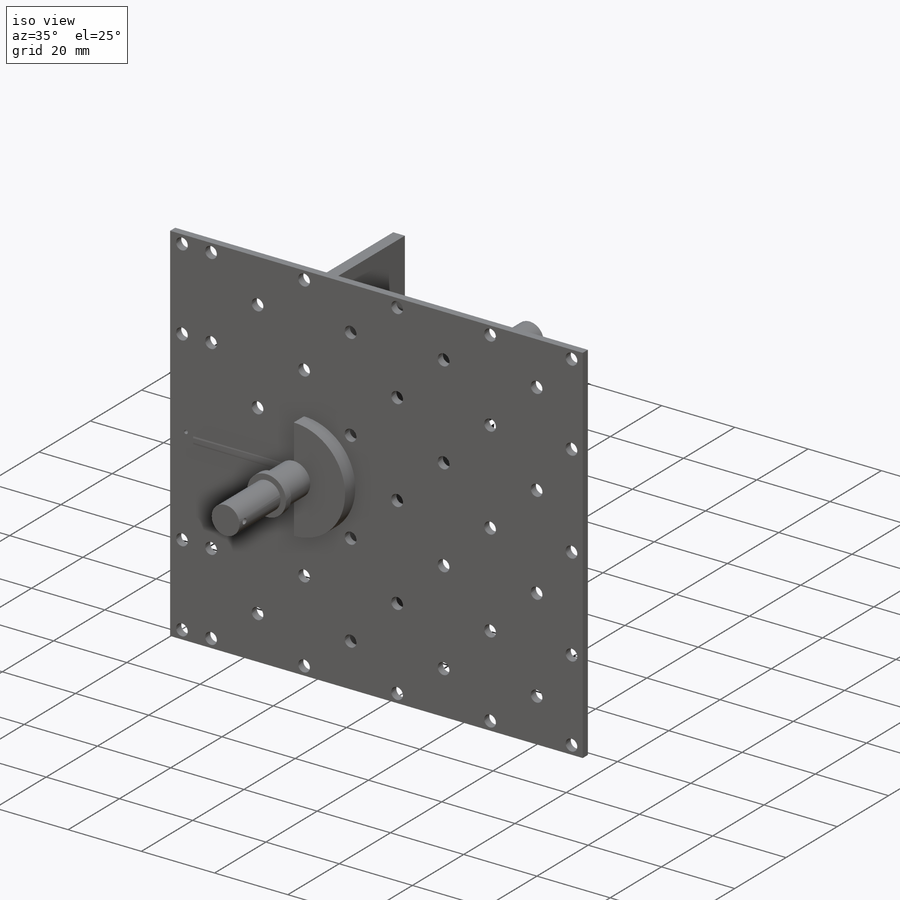
[diagram: iso view]
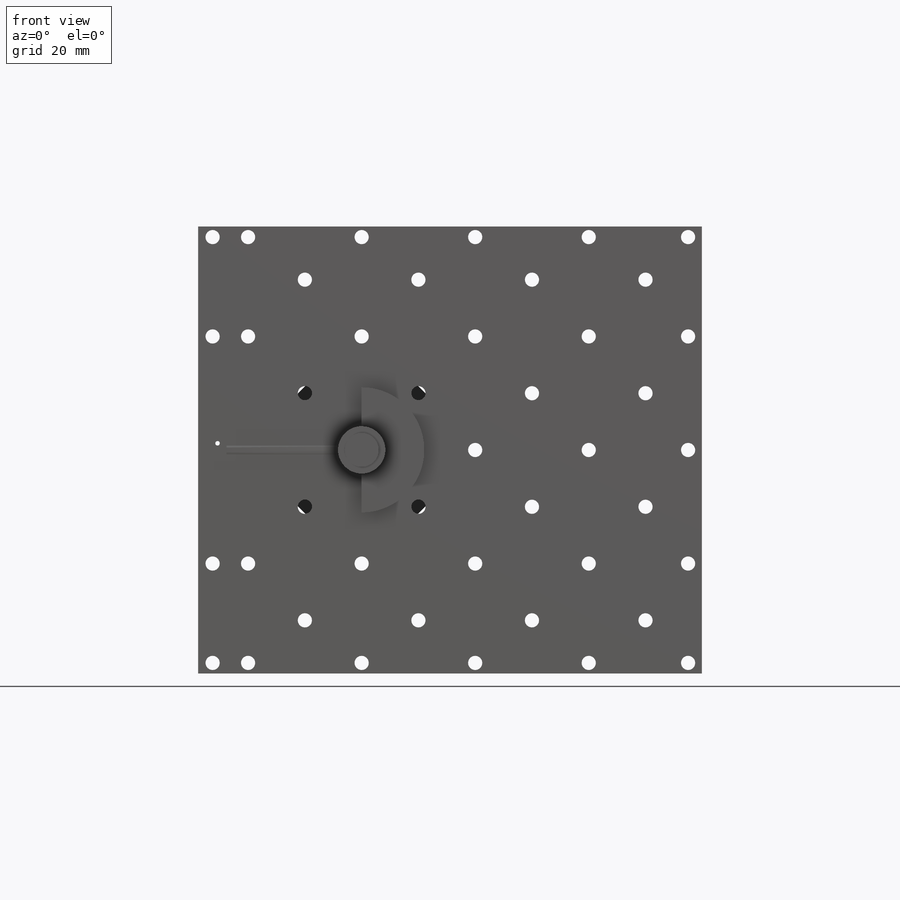
[diagram: front view]
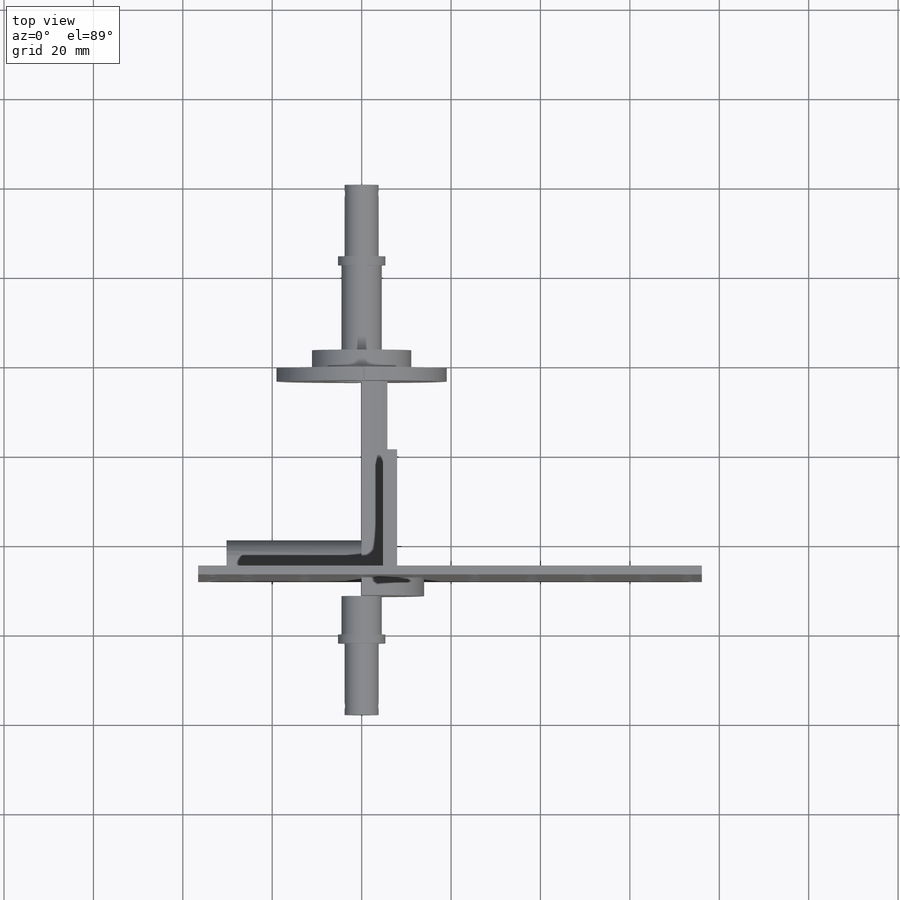
[diagram: top view]
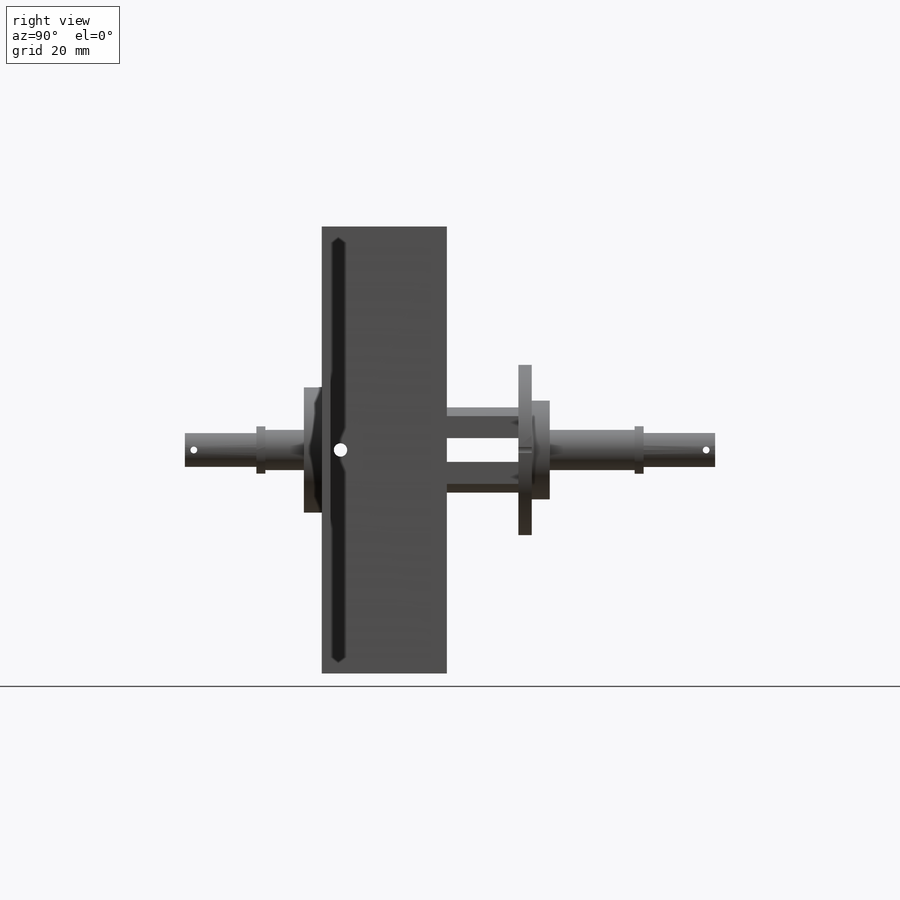
[diagram: right view]
SOLIDWORKS PART (.sldprt)
format: sldprt  version: not decoded by parser v0  size: 499,200 bytes
history: native  units: mm
features: sketch x16, extrude x13, cut_extrude x3, material x1 (+16 scaffold rows collapsed)
feature tree (49):
  scaffold x16  (default folders/planes/origin — collapsed)
  material  "Material <not specified>"
  sketch  "Sketch1"  dims[D1=19.05mm]
  extrude  "Extrude1"  Depth=16mm
  sketch  "Sketch2"  dims[D1=6.35mm]
  extrude  "Extrude2"  Depth=21mm
  sketch  "Sketch3"  dims[D1=11.0mm]
  extrude  "Extrude3"  Depth=4mm
  sketch  "Sketch4"
  extrude  "Extrude4"  Depth=3mm
  sketch  "Sketch5"  dims[D1=6.35mm]
  cut_extrude  "Extrude5"  [1 undecoded]
  sketch  "Sketch9"  dims[D1=0.0mm D2=5.7625mm]
  extrude  "Extrude9"  Depth=16mm
  sketch  "Sketch10"  dims[D1=50.0mm D2=50.0mm D3=2.5mm D4=2.5mm D5=65.0mm D6=2.5mm D7=5.0mm D8=37.0mm D9=3.0mm]
  extrude  "Extrude10"  Depth=26mm
  sketch  "Sketch11"  dims[D3=~0.747753mm D1=37.0mm D2=1.5mm]
  extrude  "Extrude11"  Depth=2mm
  sketch  "Sketch16"  dims[D1=13.0mm]
  extrude  "Extrude15"  Depth=4mm
  sketch  "Sketch17"  dims[D1=4.7625mm]
  extrude  "Extrude16"  Depth=10.6mm
  sketch  "Sketch18"  dims[D1=4.0mm]
  extrude  "Extrude17"  Depth=16mm
  sketch  "Sketch19"  dims[D1=6.35mm]
  extrude  "Extrude19"  Depth=2mm
  sketch  "Sketch20"  dims[D1=6.35mm]
  extrude  "Extrude20"  Depth=2mm
  sketch  "Sketch21"  dims[D2=2.1mm D1=2.2mm]
  extrude  "Extrude21"  Depth=35mm
  sketch  "Sketch22"  dims[D2=1.1375mm D1=2.2mm]
  cut_extrude  "Extrude22"  Depth=25mm
  sketch  "Sketch23"  dims[c1.D2=0.7125mm c1.D3=1.175mm c1.D1=2.0mm c2.D2=2.0mm]
  cut_extrude  "Extrude23"  [1 undecoded]
decode coverage: 29 of 32 modeling features carry decoded parameters
note: ~ marks probable driven/reference dimensions
note: 2 parameter values undecoded
note: suppression state not decoded; provenance and decode notes live in map.json
